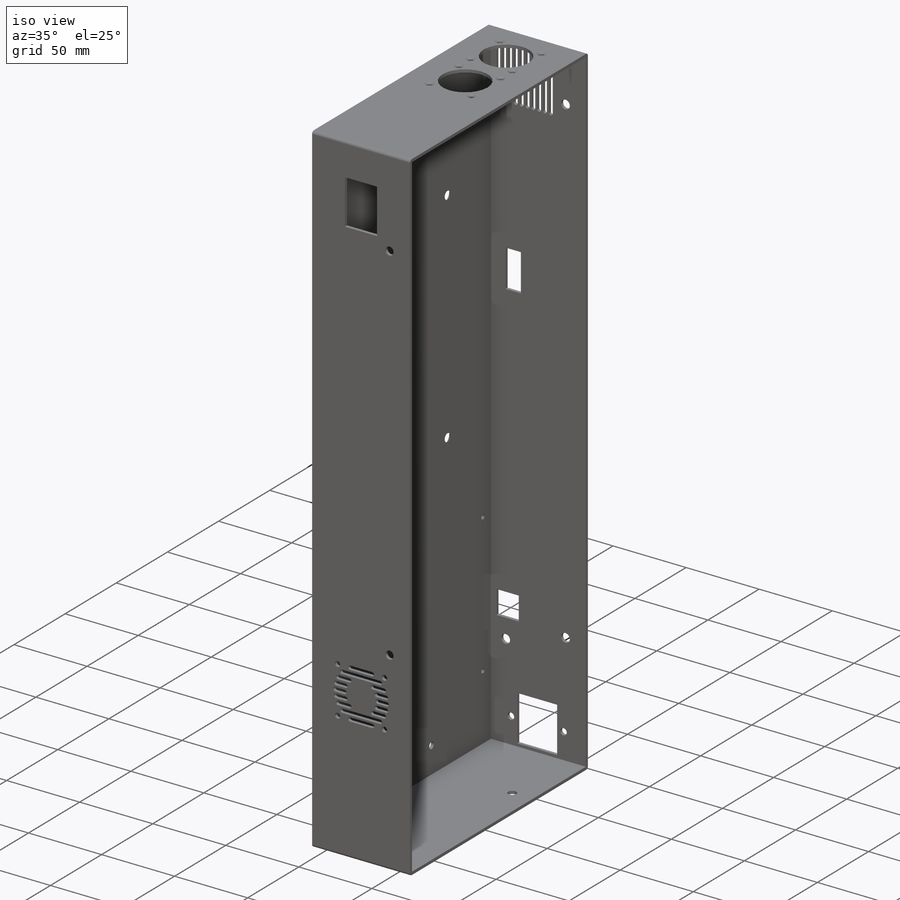
[diagram: iso view]
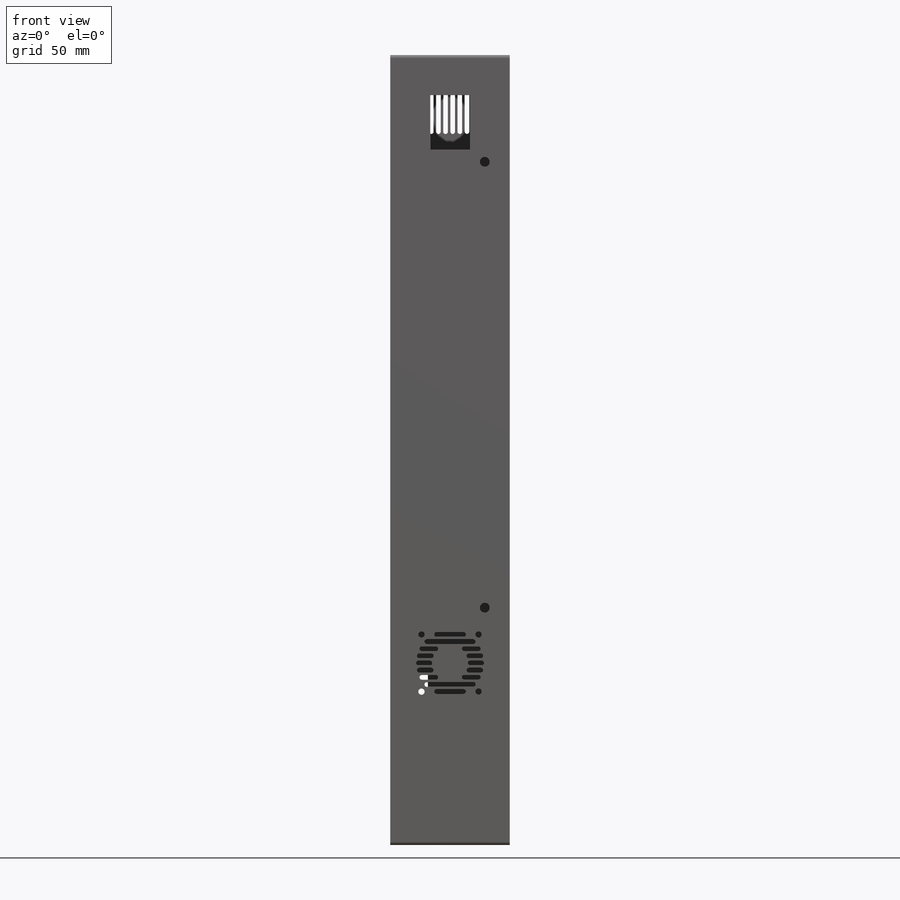
[diagram: front view]
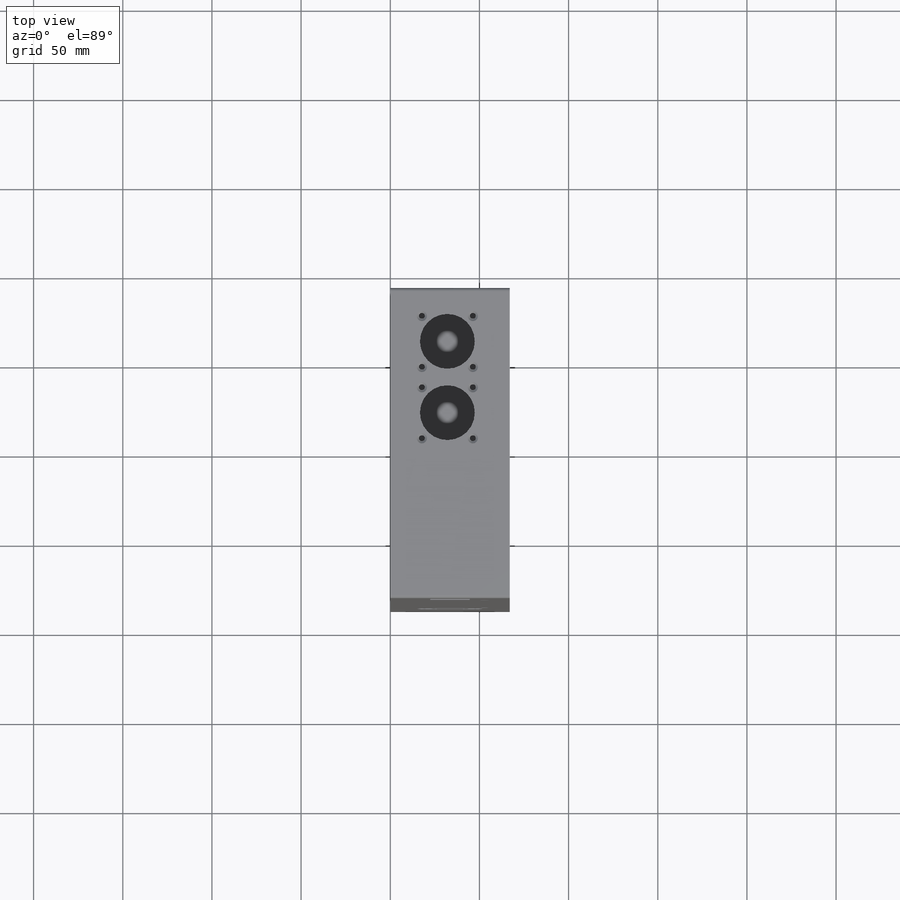
[diagram: top view]
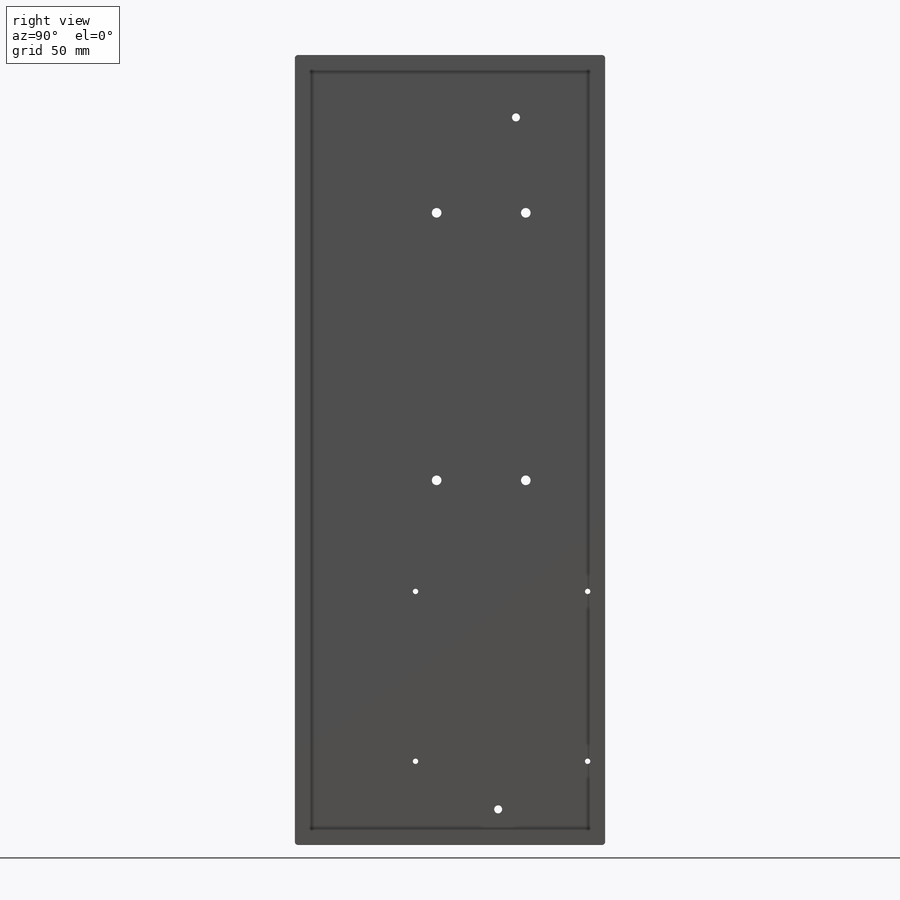
[diagram: right view]
SOLIDWORKS PART (.sldprt)
format: sldprt  version: not decoded by parser v0  size: 625,664 bytes
history: native  units: mm
features: sketch x11, cut_extrude x5, extrude x2, hole x2, material x1, fillet x1 (+11 scaffold rows collapsed)
feature tree (33):
  scaffold x11  (default folders/planes/origin — collapsed)
  material  "Material <not specified>"
  sketch  "Sketch1"  dims[D1=443.0mm D2=174.0mm]
  extrude  "Boss-Extrude1"  Depth=2mm
  sketch  "Sketch2"  dims[D1=2.0mm D2=0.0mm]
  extrude  "Boss-Extrude2"  Depth=65mm
  fillet  "Fillet1"  Radius=1.8mm
  sketch  "Sketch4"  dims[c1.D5=2.0mm c1.D6=30.374mm c1.D7=~25.598071mm c2.D5=3.5mm c2.D6=38.0mm c2.D7=20.0mm c2.D4=5.5mm c2.D1=30.5mm c2.D2=22.15mm c2.D3=390.0mm c3.D4=20.0mm c3.D7=25.0mm c3.D8=40.0mm c3.D9=28.575mm c3.D10=28.575mm c4.D8=2.6mm c4.D9=4.0mm c4.D10=4.0mm c4.D11=4.0mm c4.D12=4.0mm c4.D13=4.0mm c4.D14=4.0mm c4.D15=4.0mm c4.D16=4.0mm]
  cut_extrude  "Cut-Extrude1"  Depth=5mm
  sketch  "Sketch5"  dims[c1.D4=4.5mm c1.D7=6.0mm c1.D16=2.0mm c1.D19=30.374mm c1.D20=~6.686733mm c2.D19=~2.51602mm c2.D21=6.0mm c2.D1=27.3mm c2.D2=31.1mm c2.D3=36.0mm c2.D5=4.0mm c2.D6=20.0mm c2.D8=2.0mm c2.D9=2.0mm c2.D10=2.0mm c2.D11=2.0mm c2.D12=1.0mm c2.D13=1.0mm c2.D14=1.0mm c2.D15=1.0mm c2.D17=22.0mm c2.D18=55.0mm c2.D20=28.575mm c3.D21=28.575mm c3.D18=35.0mm c3.D12=1.0mm c3.D15=1.0mm c3.D16=8.0mm c3.D17=35.0mm c4.D18=24.0mm c4.D20=4.0mm c4.D19=2.6mm]
  cut_extrude  "Cut-Extrude2"  Depth=5mm
  sketch  "Sketch11"  dims[c1.D1=3.0mm c1.D2=3.0mm c1.D4=4.5mm c1.D8=4.5mm c1.D3=20.0mm c2.D4=185.9914mm c2.D5=60.0mm c2.D6=35.0mm c2.D7=50.0mm]
  cut_extrude  "Cut-Extrude4"  Depth=5mm
  hole  "CSK for M4 Flat Head Machine Screw1"  Diameter=4.5mm Depth=10mm
  sketch  "Sketch13"
  sketch  "Sketch12"  dims[hole-wizard template sketch: 39 standard entries collapsed; hole parameters kept: c13.Hole Dia.=4.5mm c13.Hole Depth=10.0mm c13.Near C'Sink Dia.=9.4mm c13.D4=~33.297463mm c13.Near C'Sink Angle=90.0deg c14.D5=~14.816244mm c14.Drill Angle=118.0deg]
  sketch  "Sketch14"  dims[c1.D5=30.73mm c1.D6=3.0mm c1.D8=30.73mm c1.D1=30.0mm c1.D2=32.0mm c1.D3=28.58mm c1.D4=28.58mm c1.D7=28.58mm c2.D8=40.0mm]
  cut_extrude  "Cut-Extrude5"  Depth=10mm
  hole  "CSK for #4 Flat Head Machine Screw (100)1"  Diameter=3.2639mm Depth=10mm
  sketch  "Sketch16"
  sketch  "Sketch15"  dims[hole-wizard template sketch: 39 standard entries collapsed; hole parameters kept: c13.Hole Dia.=3.2639mm c13.Hole Depth=10.0mm c13.Near C'Sink Dia.=5.715mm c13.D4=~33.297463mm c13.Near C'Sink Angle=100.0deg c14.D5=~14.816244mm c14.Drill Angle=118.0deg]
  sketch  "Sketch17"  dims[D1=5.5mm]
  cut_extrude  "Cut-Extrude6"  Depth=10mm
decode coverage: 19 of 21 modeling features carry decoded parameters
note: ~ marks probable driven/reference dimensions
note: suppression state not decoded; provenance and decode notes live in map.json
